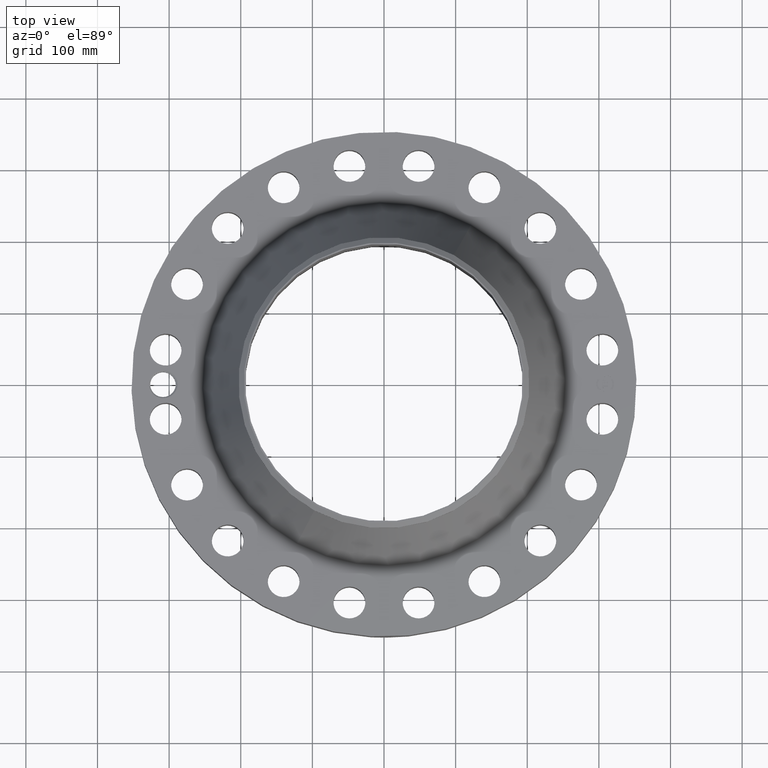
[diagram: clean part render]
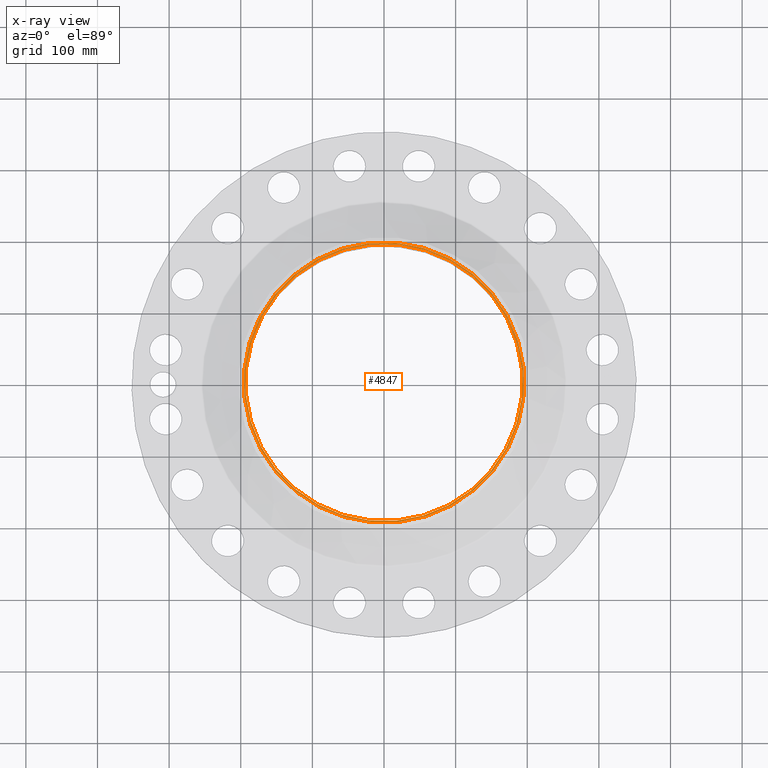
[diagram: x-ray — body ghosted, one internal face saturated and labeled with its STEP entity id]
A machine part, top view, then the same camera in x-ray: the body is ghosted and one INTERNAL B-rep face — a face not visible from any outside direction — is saturated and labeled: STEP entity #4847.
In plain terms, the highlighted planar face has unit normal (0, 0, -1).
Its self-contained STEP definition (entity closure, byte-faithful):
#3642=AXIS2_PLACEMENT_3D('Circle Axis2P3D',#3640,#3641,$) ;
#3710=AXIS2_PLACEMENT_3D('Circle Axis2P3D',#3708,#3709,$) ;
#4823=AXIS2_PLACEMENT_3D('Plane Axis2P3D',#4820,#4821,#4822) ;
#4827=AXIS2_PLACEMENT_3D('Circle Axis2P3D',#4825,#4826,$) ;
#4836=AXIS2_PLACEMENT_3D('Circle Axis2P3D',#4834,#4835,$) ;
#3640=CARTESIAN_POINT('Axis2P3D Location',(0.,0.,8.75000000003)) ;
#3644=CARTESIAN_POINT('Vertex',(3.65561973187,6.69156703444,8.75000000003)) ;
#3646=CARTESIAN_POINT('Vertex',(-3.65561973187,-6.69156703444,8.75000000003)) ;
#3708=CARTESIAN_POINT('Axis2P3D Location',(0.,0.,8.75000000003)) ;
#4820=CARTESIAN_POINT('Axis2P3D Location',(0.,8.00000000003,8.75000000004)) ;
#4825=CARTESIAN_POINT('Axis2P3D Location',(0.,0.,8.75000000004)) ;
#4829=CARTESIAN_POINT('Vertex',(3.69336977428,-6.76066802357,8.75000000004)) ;
#4831=CARTESIAN_POINT('Vertex',(-3.69336977428,6.76066802357,8.75000000004)) ;
#4834=CARTESIAN_POINT('Axis2P3D Location',(0.,0.,8.75000000004)) ;
#3641=DIRECTION('Axis2P3D Direction',(0.,0.,-0.0393700787402)) ;
#3709=DIRECTION('Axis2P3D Direction',(0.,0.,-0.0393700787402)) ;
#4821=DIRECTION('Axis2P3D Direction',(0.,0.,-0.0393700787402)) ;
#4822=DIRECTION('Axis2P3D XDirection',(0.0393700787402,0.,0.)) ;
#4826=DIRECTION('Axis2P3D Direction',(0.,0.,-0.0393700787402)) ;
#4835=DIRECTION('Axis2P3D Direction',(0.,0.,-0.0393700787402)) ;
#4840=ORIENTED_EDGE('',*,*,#4833,.T.) ;
#4841=ORIENTED_EDGE('',*,*,#4838,.T.) ;
#4844=ORIENTED_EDGE('',*,*,#3712,.T.) ;
#4845=ORIENTED_EDGE('',*,*,#3648,.T.) ;
#4846=FACE_BOUND('',#4843,.T.) ;
#4847=ADVANCED_FACE('PartBody',(#4842,#4846),#4824,.F.) ;
#3643=CIRCLE('generated circle',#3642,7.62500000003) ;
#3711=CIRCLE('generated circle',#3710,7.62500000003) ;
#4828=CIRCLE('generated circle',#4827,7.70374015751) ;
#4837=CIRCLE('generated circle',#4836,7.70374015751) ;
#3648=EDGE_CURVE('',#3645,#3647,#3643,.T.) ;
#3712=EDGE_CURVE('',#3647,#3645,#3711,.T.) ;
#4833=EDGE_CURVE('',#4830,#4832,#4828,.F.) ;
#4838=EDGE_CURVE('',#4832,#4830,#4837,.F.) ;
#4839=EDGE_LOOP('',(#4840,#4841)) ;
#4843=EDGE_LOOP('',(#4844,#4845)) ;
#4842=FACE_OUTER_BOUND('',#4839,.T.) ;
#4824=PLANE('',#4823) ;
#3645=VERTEX_POINT('',#3644) ;
#3647=VERTEX_POINT('',#3646) ;
#4830=VERTEX_POINT('',#4829) ;
#4832=VERTEX_POINT('',#4831) ;